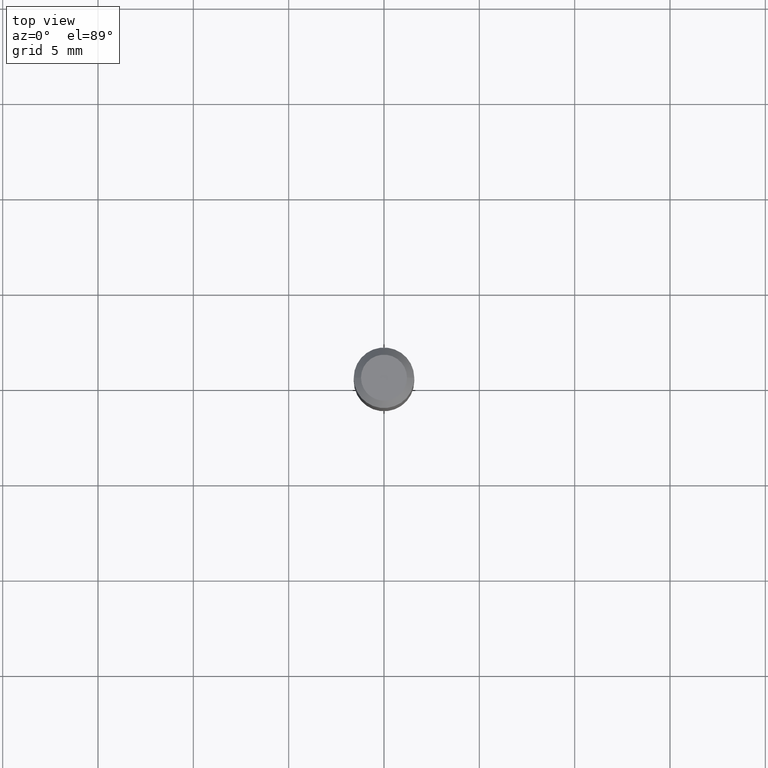
[diagram: clean part render]
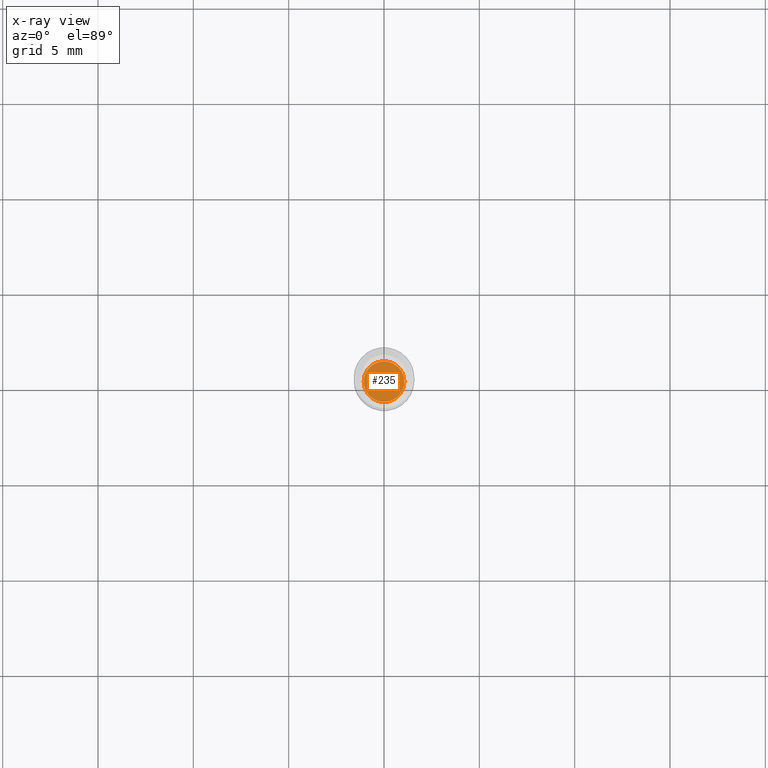
[diagram: x-ray — body ghosted, one internal face saturated and labeled with its STEP entity id]
A machine part, top view, then the same camera in x-ray: the body is ghosted and one INTERNAL B-rep face — a face not visible from any outside direction — is saturated and labeled: STEP entity #235.
In plain terms, the highlighted planar face has unit normal (-0, 0, 1).
Its self-contained STEP definition (entity closure, byte-faithful):
#19 = DIRECTION ( 'NONE',  ( 1.000000000000000000, -6.982962677686265922E-15, 4.876176775795935793E-29 ) ) ;
#53 = CARTESIAN_POINT ( 'NONE',  ( -0.04199999999999999567, -1.374833866451356541E-15, -0.4799999999999999822 ) ) ;
#85 = EDGE_CURVE ( 'NONE', #140, #176, #224, .T. ) ;
#93 = CIRCLE ( 'NONE', #418, 0.04199999999999999567 ) ;
#94 = DIRECTION ( 'NONE',  ( -2.438088387897960049E-29, 3.491481338843145188E-15, 1.000000000000000000 ) ) ;
#95 = DIRECTION ( 'NONE',  ( 1.000000000000000000, -6.982962677686269866E-15, 0.000000000000000000 ) ) ;
#119 = CARTESIAN_POINT ( 'NONE',  ( 1.173825026968865628E-29, -1.675911042644709888E-15, -0.4799999999999999822 ) ) ;
#140 = VERTEX_POINT ( 'NONE', #194 ) ;
#173 = DIRECTION ( 'NONE',  ( 1.000000000000000000, -6.982962677686269866E-15, 0.000000000000000000 ) ) ;
#176 = VERTEX_POINT ( 'NONE', #53 ) ;
#194 = CARTESIAN_POINT ( 'NONE',  ( 0.04199999999999999567, -1.969195475107533334E-15, -0.4799999999999999822 ) ) ;
#200 = CARTESIAN_POINT ( 'NONE',  ( 1.173825026968865768E-29, -1.675911042644710085E-15, -0.4800000000000000933 ) ) ;
#209 = EDGE_LOOP ( 'NONE', ( #217, #215 ) ) ;
#215 = ORIENTED_EDGE ( 'NONE', *, *, #257, .F. ) ;
#217 = ORIENTED_EDGE ( 'NONE', *, *, #85, .F. ) ;
#224 = CIRCLE ( 'NONE', #374, 0.04199999999999999567 ) ;
#229 = PLANE ( 'NONE',  #432 ) ;
#235 = ADVANCED_FACE ( 'NONE', ( #450 ), #229, .F. ) ;
#257 = EDGE_CURVE ( 'NONE', #176, #140, #93, .T. ) ;
#259 = DIRECTION ( 'NONE',  ( -2.445468806185136597E-29, 3.491481338843145583E-15, 1.000000000000000000 ) ) ;
#374 = AXIS2_PLACEMENT_3D ( 'NONE', #119, #259, #95 ) ;
#418 = AXIS2_PLACEMENT_3D ( 'NONE', #435, #430, #173 ) ;
#430 = DIRECTION ( 'NONE',  ( -2.445468806185136597E-29, 3.491481338843145583E-15, 1.000000000000000000 ) ) ;
#432 = AXIS2_PLACEMENT_3D ( 'NONE', #200, #94, #19 ) ;
#435 = CARTESIAN_POINT ( 'NONE',  ( 1.173825026968865628E-29, -1.675911042644709888E-15, -0.4799999999999999822 ) ) ;
#450 = FACE_OUTER_BOUND ( 'NONE', #209, .T. ) ;